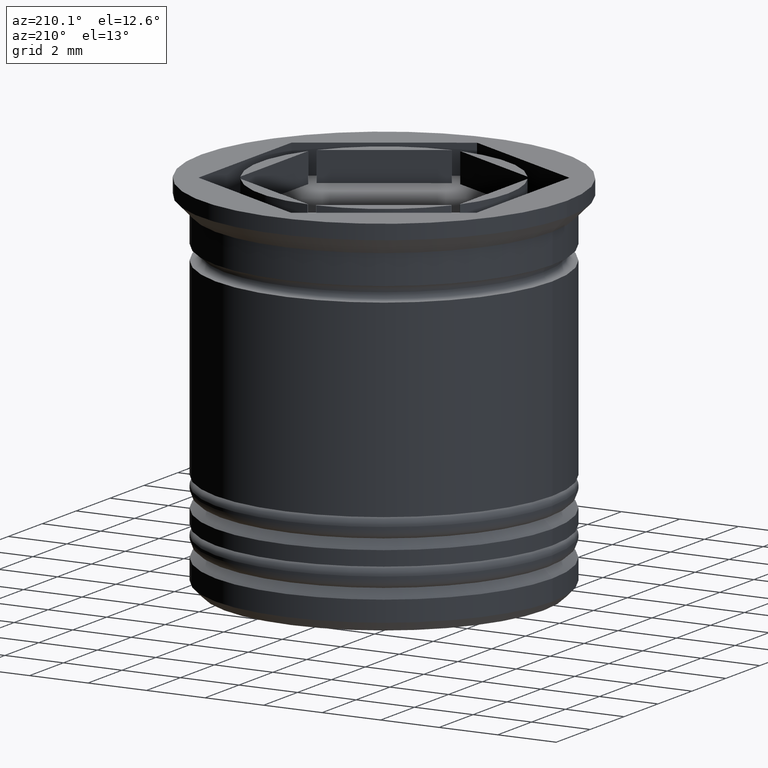
[diagram: clean part render]
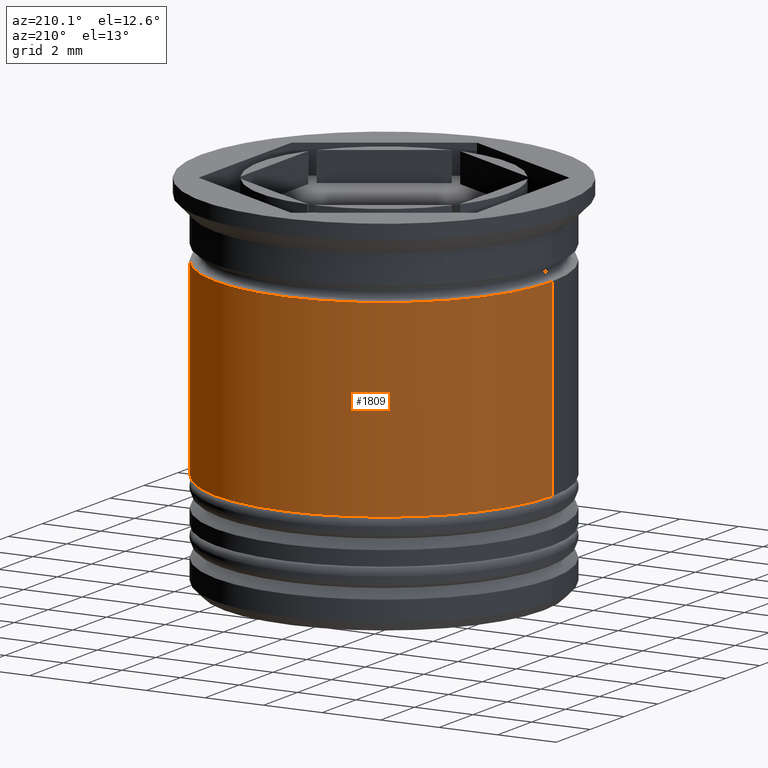
[diagram: same view with one face highlighted and labeled with its STEP entity id]
A machine part, auxiliary view. The second image highlights one B-rep face of the part: STEP entity #1809.
In plain terms, the highlighted cylindrical surface (partial cylindrical patch) has radius 5.75 mm, axis along (-0, -0, 1).
Its self-contained STEP definition (entity closure, byte-faithful):
#6 = CARTESIAN_POINT ( 'NONE',  ( 5.750000000000001776, 0.000000000000000000, -9.000000000000001776 ) ) ;
#80 = LINE ( 'NONE', #1299, #725 ) ;
#82 = DIRECTION ( 'NONE',  ( 1.000000000000000000, 0.000000000000000000, 0.000000000000000000 ) ) ;
#159 = DIRECTION ( 'NONE',  ( -0.000000000000000000, -0.000000000000000000, 1.000000000000000000 ) ) ;
#202 = VERTEX_POINT ( 'NONE', #343 ) ;
#213 = EDGE_CURVE ( 'NONE', #872, #1006, #949, .T. ) ;
#277 = ORIENTED_EDGE ( 'NONE', *, *, #213, .F. ) ;
#306 = EDGE_CURVE ( 'NONE', #935, #872, #1436, .T. ) ;
#343 = CARTESIAN_POINT ( 'NONE',  ( -5.750000000000000888, 7.041719095097282852E-16, -9.000000000000001776 ) ) ;
#450 = FACE_OUTER_BOUND ( 'NONE', #682, .T. ) ;
#566 = DIRECTION ( 'NONE',  ( -0.000000000000000000, -0.000000000000000000, 1.000000000000000000 ) ) ;
#592 = CARTESIAN_POINT ( 'NONE',  ( 0.000000000000000000, 0.000000000000000000, -9.000000000000001776 ) ) ;
#602 = AXIS2_PLACEMENT_3D ( 'NONE', #612, #1847, #1373 ) ;
#612 = CARTESIAN_POINT ( 'NONE',  ( 0.000000000000000000, 0.000000000000000000, 0.000000000000000000 ) ) ;
#682 = EDGE_LOOP ( 'NONE', ( #1776, #1662, #277, #1722 ) ) ;
#692 = AXIS2_PLACEMENT_3D ( 'NONE', #870, #1002, #82 ) ;
#725 = VECTOR ( 'NONE', #1766, 1000.000000000000000 ) ;
#762 = CYLINDRICAL_SURFACE ( 'NONE', #602, 5.750000000000000000 ) ;
#870 = CARTESIAN_POINT ( 'NONE',  ( 0.000000000000000000, 0.000000000000000000, -2.500000000000000000 ) ) ;
#872 = VERTEX_POINT ( 'NONE', #1177 ) ;
#930 = EDGE_CURVE ( 'NONE', #935, #202, #1778, .T. ) ;
#935 = VERTEX_POINT ( 'NONE', #6 ) ;
#949 = CIRCLE ( 'NONE', #692, 5.749999999999999112 ) ;
#1002 = DIRECTION ( 'NONE',  ( -0.000000000000000000, -0.000000000000000000, 1.000000000000000000 ) ) ;
#1006 = VERTEX_POINT ( 'NONE', #1674 ) ;
#1066 = DIRECTION ( 'NONE',  ( 1.000000000000000000, 0.000000000000000000, 0.000000000000000000 ) ) ;
#1177 = CARTESIAN_POINT ( 'NONE',  ( 5.749999999999999112, 0.000000000000000000, -2.500000000000000000 ) ) ;
#1299 = CARTESIAN_POINT ( 'NONE',  ( -5.750000000000000000, 7.041719095097280880E-16, 0.000000000000000000 ) ) ;
#1373 = DIRECTION ( 'NONE',  ( 1.000000000000000000, 0.000000000000000000, 0.000000000000000000 ) ) ;
#1435 = AXIS2_PLACEMENT_3D ( 'NONE', #592, #159, #1066 ) ;
#1436 = LINE ( 'NONE', #1470, #1956 ) ;
#1470 = CARTESIAN_POINT ( 'NONE',  ( 5.750000000000000000, 0.000000000000000000, 0.000000000000000000 ) ) ;
#1512 = EDGE_CURVE ( 'NONE', #202, #1006, #80, .T. ) ;
#1662 = ORIENTED_EDGE ( 'NONE', *, *, #1512, .T. ) ;
#1674 = CARTESIAN_POINT ( 'NONE',  ( -5.749999999999999112, 7.041719095097279894E-16, -2.500000000000000000 ) ) ;
#1722 = ORIENTED_EDGE ( 'NONE', *, *, #306, .F. ) ;
#1766 = DIRECTION ( 'NONE',  ( -0.000000000000000000, -0.000000000000000000, 1.000000000000000000 ) ) ;
#1776 = ORIENTED_EDGE ( 'NONE', *, *, #930, .T. ) ;
#1778 = CIRCLE ( 'NONE', #1435, 5.750000000000001776 ) ;
#1809 = ADVANCED_FACE ( 'NONE', ( #450 ), #762, .T. ) ;
#1847 = DIRECTION ( 'NONE',  ( -0.000000000000000000, -0.000000000000000000, 1.000000000000000000 ) ) ;
#1956 = VECTOR ( 'NONE', #566, 1000.000000000000000 ) ;